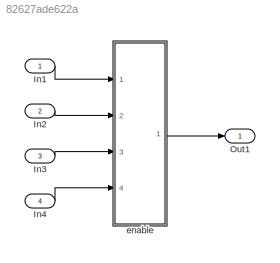
MODEL slx_82627ade622a
KIND model
CONFIG AbsTol = auto
CONFIG EnableMultiTasking = off
CONFIG FixedStep = auto
CONFIG MaxStep = auto
CONFIG MinStep = auto
CONFIG RelTol = 1e-3
CONFIG SampleTimeConstraint = Unconstrained
CONFIG Solver = FixedStepDiscrete
CONFIG SolverName = FixedStepDiscrete
CONFIG StartTime = 0.0
CONFIG StopTime = 10.0
BLOCK [Inport] In1
  IconDisplay = Port number
BLOCK [Inport] In2
  IconDisplay = Port number
  Port = 2
BLOCK [Inport] In3
  IconDisplay = Port number
  Port = 3
BLOCK [Inport] In4
  IconDisplay = Port number
  Port = 4
BLOCK [Outport] Out1
  IconDisplay = Port number
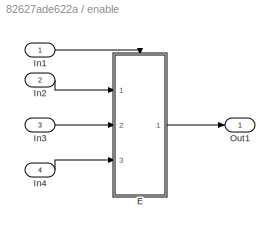
BLOCK [SubSystem] enable
  AncestorBlock = Block_TestLib/enable
  Ports = [4, 1]
  RequestExecContextInheritance = off
  Variant = off
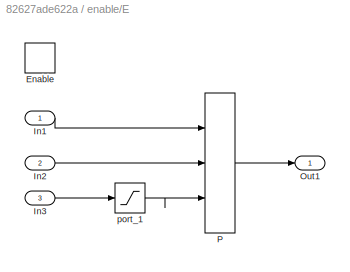
BLOCK [SubSystem] enable/E
  Ports = [3, 1, 1]
  RequestExecContextInheritance = off
  TreatAsAtomicUnit = on
  Variant = off
BLOCK [EnablePort] enable/E/Enable
  Ports = []
BLOCK [Inport] enable/E/In1
  IconDisplay = Port number
  OutDataTypeStr = double
  PortDimensions = [3 3 3]
BLOCK [Inport] enable/E/In2
  IconDisplay = Port number
  OutDataTypeStr = double
  Port = 2
  PortDimensions = [2 2 2]
BLOCK [Inport] enable/E/In3
  IconDisplay = Port number
  OutMax = 2
  OutMin = 1
  Port = 3
BLOCK [Outport] enable/E/Out1
  IconDisplay = Port number
BLOCK [Assignment] enable/E/P
  DiagnosticForDimensions = Warning
  IndexOptions = Index vector (dialog),Index vector (port),Starting index (dialog)
  Indices = [1,2],[],1
  NumberOfDimensions = 3
  OutputSizes = ,,
  Ports = [3, 1]
BLOCK [Saturate] enable/E/port_1
  InputPortMap = u0
  LowerLimit = 1
  Ports = [1, 1]
  UpperLimit = 2
BLOCK [Inport] enable/In1
  IconDisplay = Port number
  OutDataTypeStr = boolean
BLOCK [Inport] enable/In2
  IconDisplay = Port number
  Port = 2
BLOCK [Inport] enable/In3
  IconDisplay = Port number
  Port = 3
BLOCK [Inport] enable/In4
  IconDisplay = Port number
  Port = 4
BLOCK [Outport] enable/Out1
  IconDisplay = Port number
LINE In1:1 -> enable:1
LINE In2:1 -> enable:2
LINE In3:1 -> enable:3
LINE In4:1 -> enable:4
LINE enable:1 -> Out1:1
